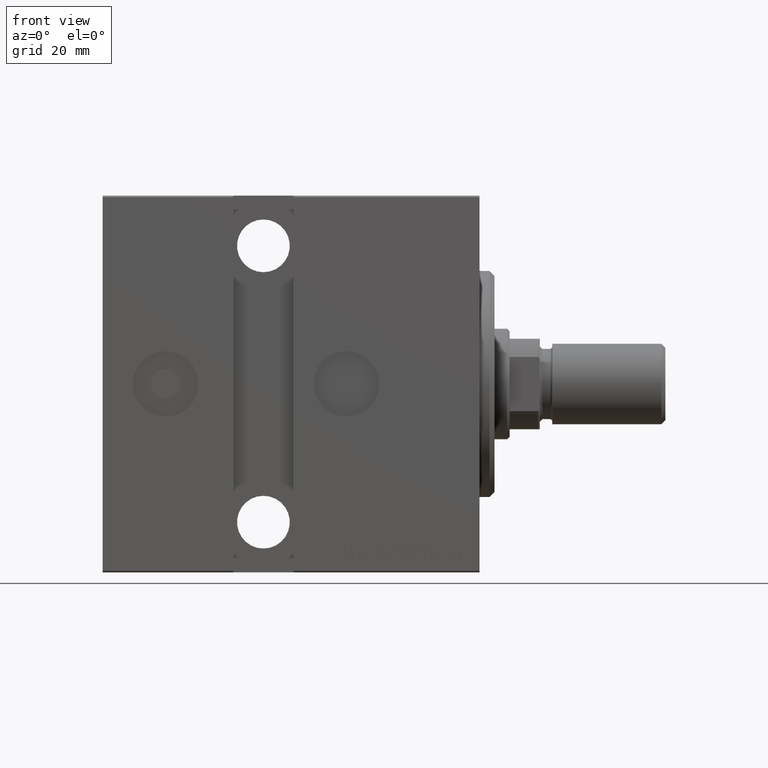
[diagram: clean part render]
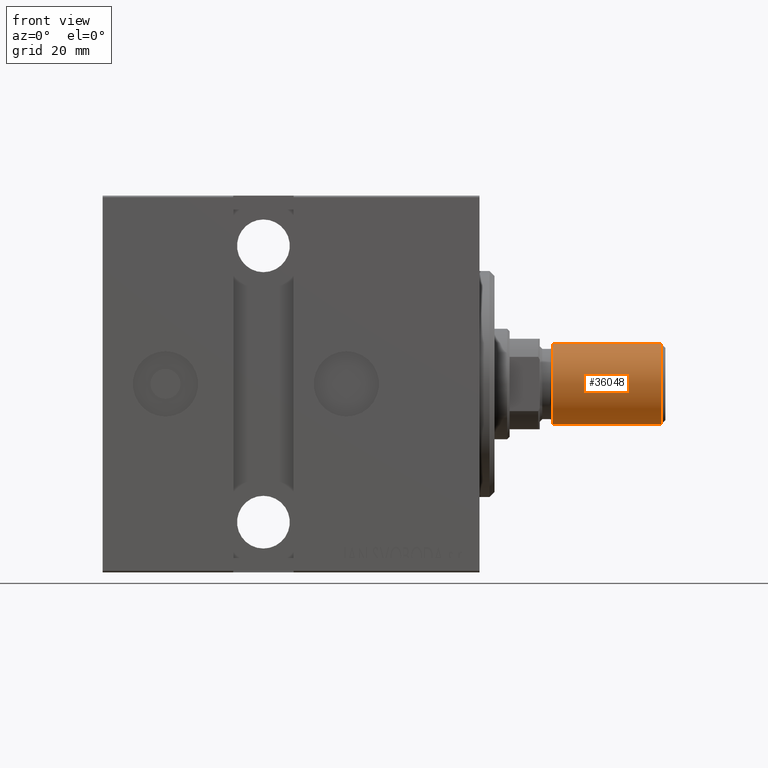
[diagram: same view with one face highlighted and labeled with its STEP entity id]
A machine part, front view. The second image highlights one B-rep face of the part: STEP entity #36048.
In plain terms, the highlighted cylindrical surface (partial cylindrical patch) has radius 8 mm, axis along (1, -0, -0).
Its self-contained STEP definition (entity closure, byte-faithful):
#695 = CARTESIAN_POINT ( 'NONE',  ( 8.000000000000000000, 9.797174393178823685E-16, 22.50000000000000000 ) ) ;
#1497 = AXIS2_PLACEMENT_3D ( 'NONE', #35320, #41856, #24695 ) ;
#2423 = CARTESIAN_POINT ( 'NONE',  ( -8.000000000000000000, 0.000000000000000000, 22.50000000000000000 ) ) ;
#3527 = CARTESIAN_POINT ( 'NONE',  ( 0.000000000000000000, 0.000000000000000000, 22.50000000000000000 ) ) ;
#3918 = CARTESIAN_POINT ( 'NONE',  ( 0.000000000000000000, 0.000000000000000000, 22.50000000000000000 ) ) ;
#9632 = EDGE_CURVE ( 'NONE', #42627, #10241, #11305, .T. ) ;
#10241 = VERTEX_POINT ( 'NONE', #25463 ) ;
#10258 = DIRECTION ( 'NONE',  ( 1.000000000000000000, 0.000000000000000000, 0.000000000000000000 ) ) ;
#10483 = EDGE_LOOP ( 'NONE', ( #24449, #39416, #26965, #39991 ) ) ;
#11025 = VERTEX_POINT ( 'NONE', #38754 ) ;
#11305 = LINE ( 'NONE', #38014, #35717 ) ;
#14099 = DIRECTION ( 'NONE',  ( -0.000000000000000000, -0.000000000000000000, -1.000000000000000000 ) ) ;
#14174 = VECTOR ( 'NONE', #34312, 1000.000000000000000 ) ;
#16752 = DIRECTION ( 'NONE',  ( 0.000000000000000000, 0.000000000000000000, 1.000000000000000000 ) ) ;
#18227 = AXIS2_PLACEMENT_3D ( 'NONE', #3918, #14099, #36248 ) ;
#23233 = CYLINDRICAL_SURFACE ( 'NONE', #18227, 8.000000000000000000 ) ;
#23906 = LINE ( 'NONE', #37148, #14174 ) ;
#24333 = DIRECTION ( 'NONE',  ( -0.000000000000000000, -0.000000000000000000, -1.000000000000000000 ) ) ;
#24449 = ORIENTED_EDGE ( 'NONE', *, *, #9632, .F. ) ;
#24695 = DIRECTION ( 'NONE',  ( 1.000000000000000000, 0.000000000000000000, 0.000000000000000000 ) ) ;
#25168 = VERTEX_POINT ( 'NONE', #2423 ) ;
#25463 = CARTESIAN_POINT ( 'NONE',  ( 8.000000000000000000, 9.797174393178823685E-16, 0.8000000000000160316 ) ) ;
#26434 = CIRCLE ( 'NONE', #36201, 8.000000000000000000 ) ;
#26965 = ORIENTED_EDGE ( 'NONE', *, *, #40814, .T. ) ;
#30400 = FACE_OUTER_BOUND ( 'NONE', #10483, .T. ) ;
#32482 = EDGE_CURVE ( 'NONE', #11025, #10241, #38947, .T. ) ;
#33022 = EDGE_CURVE ( 'NONE', #25168, #42627, #26434, .T. ) ;
#34312 = DIRECTION ( 'NONE',  ( -0.000000000000000000, -0.000000000000000000, -1.000000000000000000 ) ) ;
#35320 = CARTESIAN_POINT ( 'NONE',  ( 0.000000000000000000, 0.000000000000000000, 0.8000000000000160316 ) ) ;
#35717 = VECTOR ( 'NONE', #24333, 1000.000000000000000 ) ;
#36048 = ADVANCED_FACE ( 'NONE', ( #30400 ), #23233, .T. ) ;
#36201 = AXIS2_PLACEMENT_3D ( 'NONE', #3527, #16752, #10258 ) ;
#36248 = DIRECTION ( 'NONE',  ( -1.000000000000000000, 0.000000000000000000, 0.000000000000000000 ) ) ;
#37148 = CARTESIAN_POINT ( 'NONE',  ( -8.000000000000000000, 0.000000000000000000, 22.50000000000000000 ) ) ;
#38014 = CARTESIAN_POINT ( 'NONE',  ( 8.000000000000000000, 9.797174393178823685E-16, 22.50000000000000000 ) ) ;
#38754 = CARTESIAN_POINT ( 'NONE',  ( -8.000000000000000000, 0.000000000000000000, 0.8000000000000160316 ) ) ;
#38947 = CIRCLE ( 'NONE', #1497, 8.000000000000000000 ) ;
#39416 = ORIENTED_EDGE ( 'NONE', *, *, #33022, .F. ) ;
#39991 = ORIENTED_EDGE ( 'NONE', *, *, #32482, .T. ) ;
#40814 = EDGE_CURVE ( 'NONE', #25168, #11025, #23906, .T. ) ;
#41856 = DIRECTION ( 'NONE',  ( -0.000000000000000000, -0.000000000000000000, 1.000000000000000000 ) ) ;
#42627 = VERTEX_POINT ( 'NONE', #695 ) ;